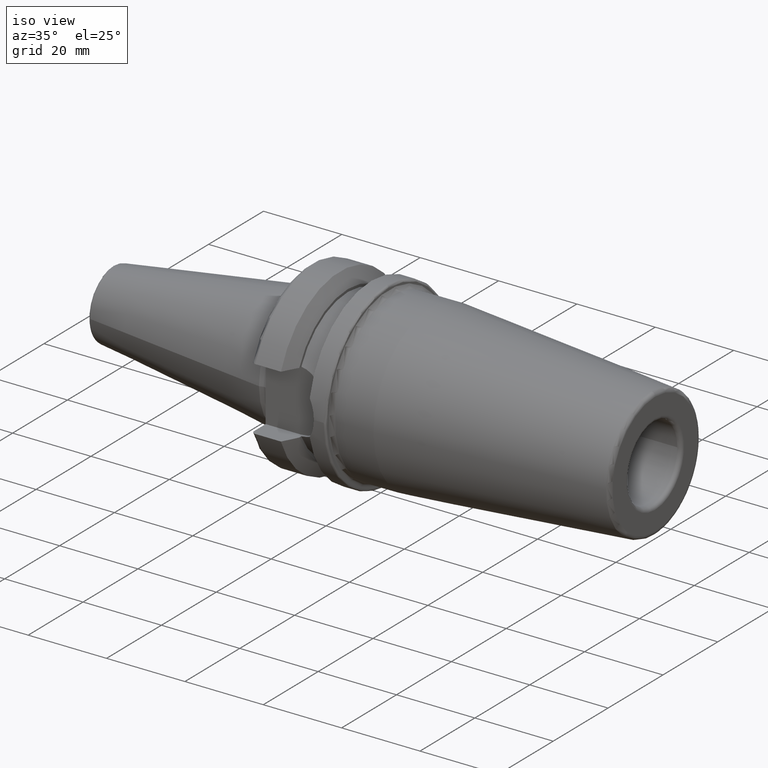
[diagram: clean part render]
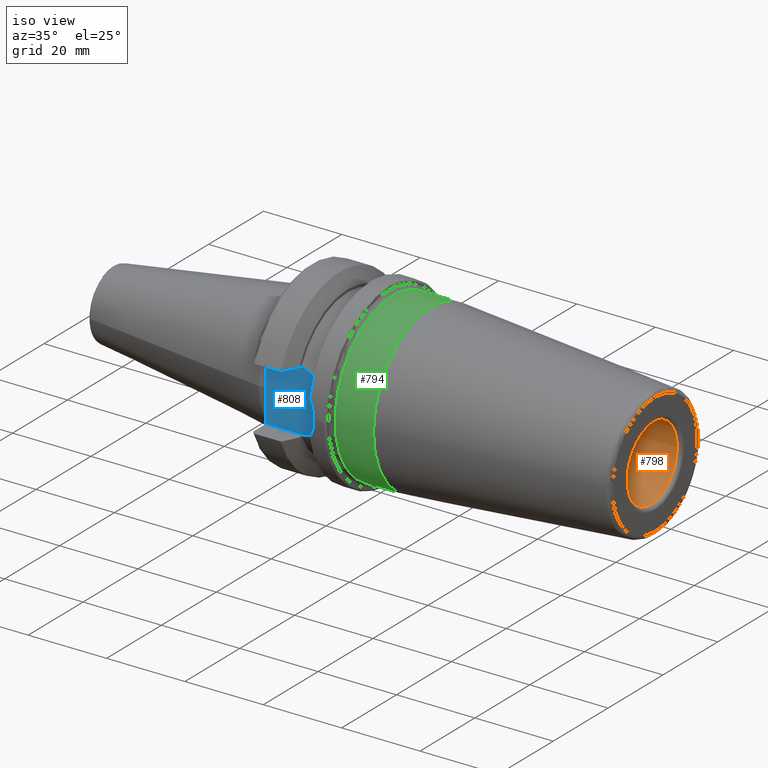
[diagram: same view with three faces highlighted in distinct colors, each labeled with its STEP entity id]
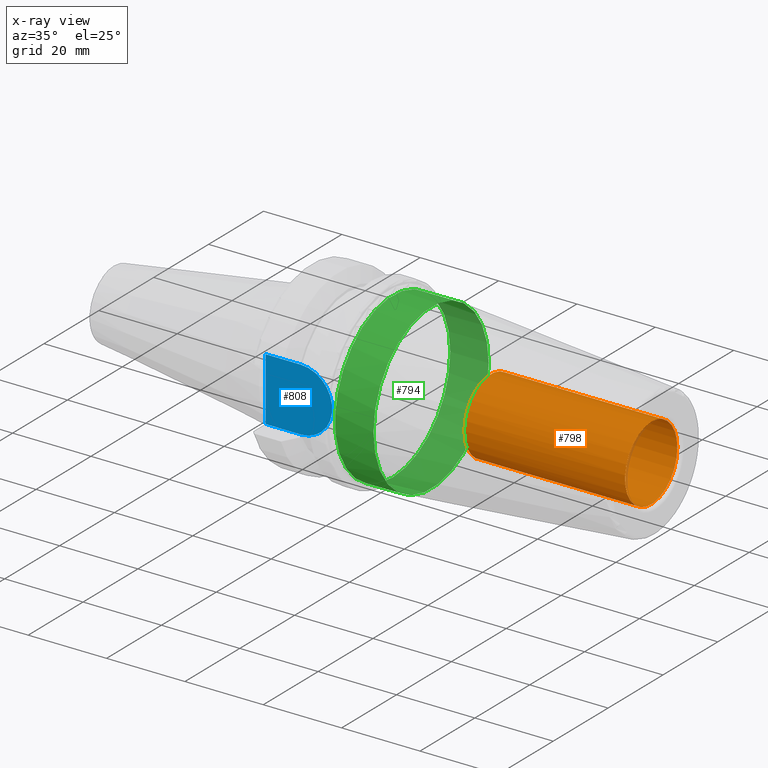
[diagram: x-ray of the same camera — body ghosted, the three highlighted faces saturated]
A machine part, iso view with three faces highlighted in distinct colors.
The next image is the same camera in x-ray (body ghosted, the three faces saturated) — at least one of them is partly hidden behind the body in this view.
Their STEP definitions:

[orange] entity #798 — the highlighted cylindrical surface (bore or boss wall) has radius 9.525 mm, axis along (1, 0, 0).
#73=CYLINDRICAL_SURFACE('',#886,9.525);
#93=FACE_OUTER_BOUND('',#145,.T.);
#145=EDGE_LOOP('',(#564,#565,#566,#567,#568));
#196=LINE('',#1277,#236);
#236=VECTOR('',#1025,9.525);
#283=CIRCLE('',#880,9.525);
#286=CIRCLE('',#883,9.525);
#288=CIRCLE('',#887,9.525);
#342=VERTEX_POINT('',#1265);
#343=VERTEX_POINT('',#1266);
#346=VERTEX_POINT('',#1276);
#426=EDGE_CURVE('',#342,#343,#283,.T.);
#429=EDGE_CURVE('',#343,#342,#286,.T.);
#431=EDGE_CURVE('',#342,#346,#196,.T.);
#432=EDGE_CURVE('',#346,#346,#288,.T.);
#564=ORIENTED_EDGE('',*,*,#426,.F.);
#565=ORIENTED_EDGE('',*,*,#431,.T.);
#566=ORIENTED_EDGE('',*,*,#432,.F.);
#567=ORIENTED_EDGE('',*,*,#431,.F.);
#568=ORIENTED_EDGE('',*,*,#429,.F.);
#798=ADVANCED_FACE('',(#93),#73,.F.);
#880=AXIS2_PLACEMENT_3D('',#1267,#1011,#1012);
#883=AXIS2_PLACEMENT_3D('',#1271,#1017,#1018);
#886=AXIS2_PLACEMENT_3D('',#1275,#1023,#1024);
#887=AXIS2_PLACEMENT_3D('',#1278,#1026,#1027);
#1011=DIRECTION('center_axis',(-1.,0.,0.));
#1012=DIRECTION('ref_axis',(0.,1.,-6.12323399573677E-17));
#1017=DIRECTION('center_axis',(-1.,0.,0.));
#1018=DIRECTION('ref_axis',(0.,1.,-6.12323399573677E-17));
#1023=DIRECTION('center_axis',(1.,0.,0.));
#1024=DIRECTION('ref_axis',(0.,-1.,0.));
#1025=DIRECTION('',(-1.,0.,0.));
#1026=DIRECTION('center_axis',(1.,0.,0.));
#1027=DIRECTION('ref_axis',(0.,0.,-1.));
#1265=CARTESIAN_POINT('',(89.,9.525,1.16647607618785E-15));
#1266=CARTESIAN_POINT('',(89.,-1.16647607618785E-15,9.525));
#1267=CARTESIAN_POINT('Origin',(89.,0.,0.));
#1271=CARTESIAN_POINT('Origin',(89.,0.,0.));
#1275=CARTESIAN_POINT('Origin',(69.,0.,0.));
#1276=CARTESIAN_POINT('',(48.,9.525,1.16647607618785E-15));
#1277=CARTESIAN_POINT('',(69.,9.525,1.16647607618785E-15));
#1278=CARTESIAN_POINT('Origin',(48.,0.,0.));

[blue] entity #808 — the highlighted planar face has unit normal (0, 1, 0).
#51=PLANE('',#904);
#103=FACE_OUTER_BOUND('',#157,.T.);
#157=EDGE_LOOP('',(#619,#620,#621,#622));
#208=LINE('',#1386,#248);
#209=LINE('',#1393,#249);
#212=LINE('',#1409,#252);
#248=VECTOR('',#1069,10.);
#249=VECTOR('',#1072,10.);
#252=VECTOR('',#1077,10.);
#295=CIRCLE('',#901,8.05);
#365=VERTEX_POINT('',#1361);
#366=VERTEX_POINT('',#1363);
#370=VERTEX_POINT('',#1384);
#372=VERTEX_POINT('',#1392);
#455=EDGE_CURVE('',#365,#366,#295,.T.);
#461=EDGE_CURVE('',#370,#365,#208,.T.);
#463=EDGE_CURVE('',#366,#372,#209,.T.);
#467=EDGE_CURVE('',#372,#370,#212,.T.);
#619=ORIENTED_EDGE('',*,*,#463,.F.);
#620=ORIENTED_EDGE('',*,*,#455,.F.);
#621=ORIENTED_EDGE('',*,*,#461,.F.);
#622=ORIENTED_EDGE('',*,*,#467,.F.);
#808=ADVANCED_FACE('',(#103),#51,.F.);
#901=AXIS2_PLACEMENT_3D('',#1364,#1062,#1063);
#904=AXIS2_PLACEMENT_3D('',#1408,#1075,#1076);
#1062=DIRECTION('center_axis',(0.,1.,0.));
#1063=DIRECTION('ref_axis',(0.,0.,1.));
#1069=DIRECTION('',(1.,0.,0.));
#1072=DIRECTION('',(-1.,0.,-4.96189061284986E-16));
#1075=DIRECTION('center_axis',(0.,1.,0.));
#1076=DIRECTION('ref_axis',(0.,0.,1.));
#1077=DIRECTION('',(0.,0.,1.));
#1361=CARTESIAN_POINT('',(10.95,-16.3,8.05));
#1363=CARTESIAN_POINT('',(10.95,-16.3,-8.05));
#1364=CARTESIAN_POINT('Origin',(10.95,-16.3,0.));
#1384=CARTESIAN_POINT('',(1.99999999999999,-16.3,8.05));
#1386=CARTESIAN_POINT('',(1.99999999999999,-16.3,8.05));
#1392=CARTESIAN_POINT('',(1.99999999999999,-16.3,-8.05));
#1393=CARTESIAN_POINT('',(10.95,-16.3,-8.05));
#1408=CARTESIAN_POINT('Origin',(10.5,-16.3,0.));
#1409=CARTESIAN_POINT('',(1.99999999999999,-16.3,0.));

[green] entity #794 — the highlighted cylindrical surface (bore or boss wall) has radius 21 mm, axis along (1, 0, 0).
#72=CYLINDRICAL_SURFACE('',#875,21.);
#89=FACE_OUTER_BOUND('',#139,.T.);
#139=EDGE_LOOP('',(#550,#551,#552,#553,#554));
#195=LINE('',#1260,#235);
#235=VECTOR('',#1004,21.);
#277=CIRCLE('',#871,21.);
#278=CIRCLE('',#872,21.);
#281=CIRCLE('',#876,21.);
#337=VERTEX_POINT('',#1250);
#338=VERTEX_POINT('',#1251);
#340=VERTEX_POINT('',#1258);
#419=EDGE_CURVE('',#337,#338,#277,.T.);
#420=EDGE_CURVE('',#338,#337,#278,.T.);
#423=EDGE_CURVE('',#340,#340,#281,.T.);
#424=EDGE_CURVE('',#340,#338,#195,.T.);
#550=ORIENTED_EDGE('',*,*,#423,.F.);
#551=ORIENTED_EDGE('',*,*,#424,.T.);
#552=ORIENTED_EDGE('',*,*,#419,.F.);
#553=ORIENTED_EDGE('',*,*,#420,.F.);
#554=ORIENTED_EDGE('',*,*,#424,.F.);
#794=ADVANCED_FACE('',(#89),#72,.T.);
#871=AXIS2_PLACEMENT_3D('',#1252,#992,#993);
#872=AXIS2_PLACEMENT_3D('',#1253,#994,#995);
#875=AXIS2_PLACEMENT_3D('',#1257,#1000,#1001);
#876=AXIS2_PLACEMENT_3D('',#1259,#1002,#1003);
#992=DIRECTION('center_axis',(-1.,-1.62798202122572E-21,0.));
#993=DIRECTION('ref_axis',(0.,1.,1.22464679914735E-16));
#994=DIRECTION('center_axis',(-1.,-1.62798202122572E-21,0.));
#995=DIRECTION('ref_axis',(0.,1.,1.22464679914735E-16));
#1000=DIRECTION('center_axis',(1.,0.,0.));
#1001=DIRECTION('ref_axis',(0.,-1.,0.));
#1002=DIRECTION('center_axis',(1.,0.,0.));
#1003=DIRECTION('ref_axis',(0.,0.,-1.));
#1004=DIRECTION('',(-1.,0.,0.));
#1250=CARTESIAN_POINT('',(23.,-2.57175827820944E-15,-21.));
#1251=CARTESIAN_POINT('',(23.,21.,2.57175827820944E-15));
#1252=CARTESIAN_POINT('Origin',(23.,0.,0.));
#1253=CARTESIAN_POINT('Origin',(23.,0.,0.));
#1257=CARTESIAN_POINT('Origin',(27.4110393436072,0.,0.));
#1258=CARTESIAN_POINT('',(32.8220786872143,21.,2.57175827820944E-15));
#1259=CARTESIAN_POINT('Origin',(32.8220786872143,0.,0.));
#1260=CARTESIAN_POINT('',(27.4110393436072,21.,2.57175827820944E-15));